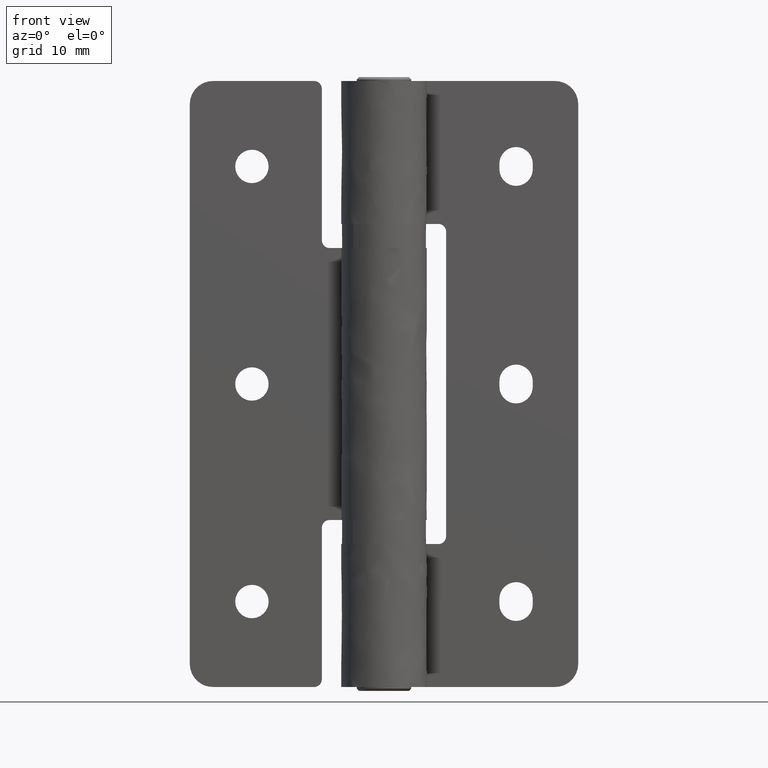
[diagram: clean part render]
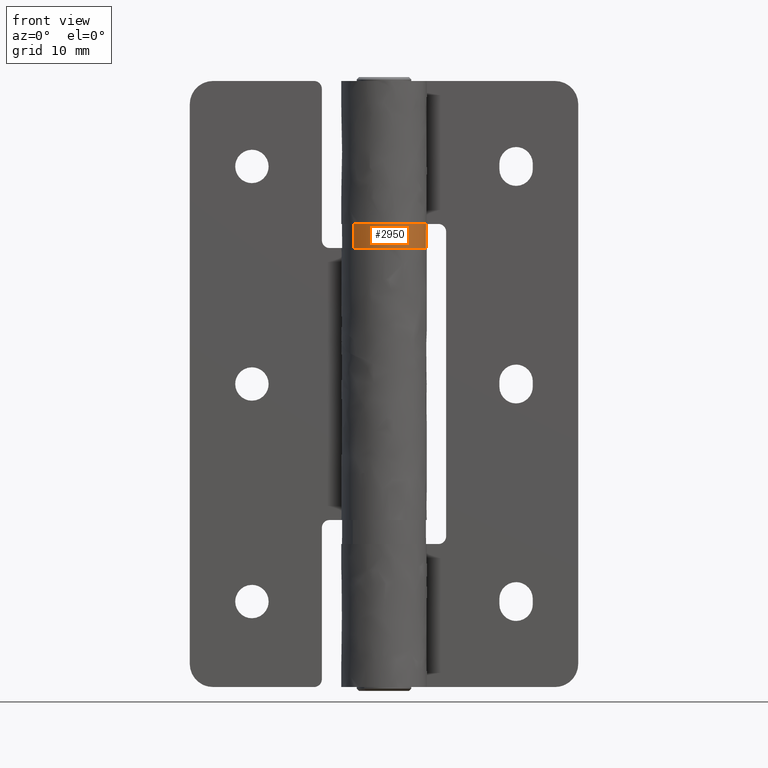
[diagram: same view with one face highlighted and labeled with its STEP entity id]
A machine part, front view. The second image highlights one B-rep face of the part: STEP entity #2950.
In plain terms, the highlighted face is a freeform B-spline surface patch.
Its self-contained STEP definition (entity closure, byte-faithful):
#2629=CARTESIAN_POINT('',(-3.943012842474344,-3.689531925990342,59.600000000000009));
#2630=VERTEX_POINT('',#2629);
#2641=CARTESIAN_POINT('',(0.000001444360469,-5.399999999999808,59.600000000000001));
#2642=VERTEX_POINT('',#2641);
#2643=CARTESIAN_POINT('',(-3.943012842474344,-3.689531925990342,59.600000000000009));
#2644=CARTESIAN_POINT('',(-3.691360478569494,-3.958548929059615,59.599999999999959));
#2645=CARTESIAN_POINT('',(-3.254896927099758,-4.338370133555252,59.600000000000087));
#2646=CARTESIAN_POINT('',(-2.452001558262252,-4.837727585702475,59.599999999999874));
#2647=CARTESIAN_POINT('',(-1.427320781180482,-5.266845573781776,59.600000000000520));
#2648=CARTESIAN_POINT('',(-0.529550896913935,-5.400217033833610,59.599999999999788));
#2649=CARTESIAN_POINT('',(0.000001444360469,-5.399999999999808,59.600000000000001));
#2650=B_SPLINE_CURVE_WITH_KNOTS('',3,(#2643,#2644,#2645,#2646,#2647,#2648,#2649),.UNSPECIFIED.,.F.,.U.,(4,1,1,1,4),(0.000000022925136,1.105113741456516,1.726749445206264,2.831851024979305,4.420452524770726),.UNSPECIFIED.);
#2651=EDGE_CURVE('',#2630,#2642,#2650,.T.);
#2653=CARTESIAN_POINT('',(5.400000000000000,0.0,59.600000000000001));
#2654=VERTEX_POINT('',#2653);
#2655=CARTESIAN_POINT('',(0.000001444360469,-5.399999999999808,59.600000000000001));
#2656=CARTESIAN_POINT('',(0.530177762271229,-5.400248014521686,59.599999999999923));
#2657=CARTESIAN_POINT('',(1.347322211069708,-5.278615927032345,59.600000000000250));
#2658=CARTESIAN_POINT('',(2.419857312735836,-4.857277841456933,59.599999999999682));
#2659=CARTESIAN_POINT('',(3.159166555141974,-4.407953872821744,59.600000000000399));
#2660=CARTESIAN_POINT('',(3.850121760635931,-3.819275568209007,59.599999999999483));
#2661=CARTESIAN_POINT('',(4.511959398904686,-3.042583785931636,59.600000000000250));
#2662=CARTESIAN_POINT('',(5.036540042136527,-2.061196097686154,59.599999999999930));
#2663=CARTESIAN_POINT('',(5.338808687429418,-0.994001548438331,59.599999999999781));
#2664=CARTESIAN_POINT('',(5.400033199193081,-0.331338662454892,59.600000000000257));
#2665=CARTESIAN_POINT('',(5.400000000000000,0.0,59.600000000000001));
#2666=B_SPLINE_CURVE_WITH_KNOTS('',3,(#2655,#2656,#2657,#2658,#2659,#2660,#2661,#2662,#2663,#2664,#2665),.UNSPECIFIED.,.F.,.U.,(4,1,1,1,1,1,1,1,4),(0.000000087730022,1.590432017954521,2.451931282263280,3.445958962535133,4.174933496270686,5.168913423878515,6.494301606563166,7.488336011317586,8.482352573459249),.UNSPECIFIED.);
#2667=EDGE_CURVE('',#2642,#2654,#2666,.T.);
#2669=CARTESIAN_POINT('',(3.943012838031218,3.689531930738721,59.599999999999987));
#2670=VERTEX_POINT('',#2669);
#2671=CARTESIAN_POINT('',(5.400000000000000,0.0,59.600000000000001));
#2672=CARTESIAN_POINT('',(5.400297100574385,0.550092216501772,59.600000000000122));
#2673=CARTESIAN_POINT('',(5.276046529224017,1.353813319626143,59.599999999999881));
#2674=CARTESIAN_POINT('',(4.777491392522765,2.616313176718014,59.600000000000193));
#2675=CARTESIAN_POINT('',(4.319059846986112,3.288044938347290,59.599999999999930));
#2676=CARTESIAN_POINT('',(3.943012838031218,3.689531930738721,59.599999999999987));
#2677=B_SPLINE_CURVE_WITH_KNOTS('',3,(#2671,#2672,#2673,#2674,#2675,#2676),.UNSPECIFIED.,.F.,.U.,(4,1,1,4),(0.000000020487021,1.650157503087802,2.411745329237241,4.061902315852191),.UNSPECIFIED.);
#2678=EDGE_CURVE('',#2654,#2670,#2677,.T.);
#2884=CARTESIAN_POINT('',(-3.943013151264365,-3.689532123312691,56.345154692314139));
#2885=CARTESIAN_POINT('',(-0.253481027951674,-7.632545274577057,56.345154692314146));
#2886=CARTESIAN_POINT('',(3.689532123312691,-3.943013151264365,56.345154692314139));
#2887=CARTESIAN_POINT('',(7.632545274577057,-0.253481027951674,56.345154692314146));
#2888=CARTESIAN_POINT('',(3.943013151264365,3.689532123312691,56.345154692314139));
#2889=CARTESIAN_POINT('',(-3.943013151264365,-3.689532123312691,59.754845414005644));
#2890=CARTESIAN_POINT('',(-0.253481027951674,-7.632545274577056,59.754845414005636));
#2891=CARTESIAN_POINT('',(3.689532123312691,-3.943013151264365,59.754845414005644));
#2892=CARTESIAN_POINT('',(7.632545274577056,-0.253481027951674,59.754845414005636));
#2893=CARTESIAN_POINT('',(3.943013151264365,3.689532123312691,59.754845414005644));
#2901=(BOUNDED_SURFACE()B_SPLINE_SURFACE(2,1,((#2884,#2889),(#2885,#2890),(#2886,#2891),(#2887,#2892),(#2888,#2893)),.UNSPECIFIED.,.F.,.F.,.U.)B_SPLINE_SURFACE_WITH_KNOTS((3,2,3),(2,2),(0.0,8.947012947258854,17.894025894517711),(0.0,3.409690721691504),.UNSPECIFIED.)GEOMETRIC_REPRESENTATION_ITEM()RATIONAL_B_SPLINE_SURFACE(((1.0,1.0),(0.707106781186547,0.707106781186547),(1.0,1.0),(0.707106781186547,0.707106781186547),(1.0,1.0)))REPRESENTATION_ITEM('')SURFACE());
#2902=ORIENTED_EDGE('',*,*,#2651,.F.);
#2903=CARTESIAN_POINT('',(-3.943013198097780,-3.689532073261690,56.499999999999979));
#2904=VERTEX_POINT('',#2903);
#2905=CARTESIAN_POINT('',(-3.943013198097780,-3.689532073261690,56.499999999999979));
#2906=CARTESIAN_POINT('',(-3.943012842474344,-3.689531925990342,59.600000000000009));
#2907=QUASI_UNIFORM_CURVE('',1,(#2905,#2906),.UNSPECIFIED.,.F.,.U.);
#2908=EDGE_CURVE('',#2904,#2630,#2907,.T.);
#2909=ORIENTED_EDGE('',*,*,#2908,.F.);
#2910=CARTESIAN_POINT('',(4.872458096471080,-2.327907235723416,56.499999999999993));
#2911=VERTEX_POINT('',#2910);
#2912=CARTESIAN_POINT('',(-3.943013198097780,-3.689532073261690,56.499999999999979));
#2913=CARTESIAN_POINT('',(-3.737598432207108,-3.909081408860117,56.499999999999993));
#2914=CARTESIAN_POINT('',(-3.228952768644250,-4.368964759978959,56.499999999999957));
#2915=CARTESIAN_POINT('',(-2.382907886844869,-4.882214464933957,56.499999999999957));
#2916=CARTESIAN_POINT('',(-1.482879378436550,-5.216261117265958,56.500000000000043));
#2917=CARTESIAN_POINT('',(-0.622478815272753,-5.387106820274349,56.499999999999957));
#2918=CARTESIAN_POINT('',(0.227229451295467,-5.418185747897239,56.500000000000021));
#2919=CARTESIAN_POINT('',(1.124993260028874,-5.307311230958482,56.499999999999922));
#2920=CARTESIAN_POINT('',(2.071844344871375,-5.024894833961731,56.500000000000028));
#2921=CARTESIAN_POINT('',(3.091996943010920,-4.484346846792350,56.499999999999901));
#2922=CARTESIAN_POINT('',(4.110710239697579,-3.599637792971827,56.499999999999822));
#2923=CARTESIAN_POINT('',(4.648762060361901,-2.796610720672583,56.500000000000448));
#2924=CARTESIAN_POINT('',(4.872458096471080,-2.327907235723416,56.499999999999993));
#2925=B_SPLINE_CURVE_WITH_KNOTS('',3,(#2912,#2913,#2914,#2915,#2916,#2917,#2918,#2919,#2920,#2921,#2922,#2923,#2924),.UNSPECIFIED.,.F.,.U.,(4,1,1,1,1,1,1,1,1,1,4),(0.000000058316775,0.901996918588493,2.049993295277776,2.952010903813831,3.772026130138060,4.674042245098496,5.493983874986726,6.477994405593812,7.626007920472842,8.938032803921960,10.496016315864640),.UNSPECIFIED.);
#2926=EDGE_CURVE('',#2904,#2911,#2925,.T.);
#2927=ORIENTED_EDGE('',*,*,#2926,.T.);
#2928=CARTESIAN_POINT('',(3.943013120300164,3.689532156404218,56.499999999999972));
#2929=VERTEX_POINT('',#2928);
#2930=CARTESIAN_POINT('',(4.872458096471080,-2.327907235723416,56.499999999999993));
#2931=CARTESIAN_POINT('',(5.105116818179941,-1.841596655138052,56.499999999999943));
#2932=CARTESIAN_POINT('',(5.343134119372832,-1.059381225181908,56.500000000000142));
#2933=CARTESIAN_POINT('',(5.427442130449797,0.120120162055111,56.499999999999851));
#2934=CARTESIAN_POINT('',(5.315910317715152,1.164140735484858,56.500000000000043));
#2935=CARTESIAN_POINT('',(4.887185027279124,2.450770824090013,56.499999999999801));
#2936=CARTESIAN_POINT('',(4.334598288247286,3.271507082610278,56.500000000000433));
#2937=CARTESIAN_POINT('',(3.943013120300164,3.689532156404218,56.499999999999972));
#2938=B_SPLINE_CURVE_WITH_KNOTS('',3,(#2930,#2931,#2932,#2933,#2934,#2935,#2936,#2937),.UNSPECIFIED.,.F.,.U.,(4,1,1,1,1,4),(0.000000049805053,1.617177221260596,2.425770477445468,3.537553210402119,4.750456952055814,6.468708566578509),.UNSPECIFIED.);
#2939=EDGE_CURVE('',#2911,#2929,#2938,.T.);
#2940=ORIENTED_EDGE('',*,*,#2939,.T.);
#2941=CARTESIAN_POINT('',(3.943013120300164,3.689532156404218,56.499999999999972));
#2942=CARTESIAN_POINT('',(3.943012838031218,3.689531930738721,59.599999999999987));
#2943=QUASI_UNIFORM_CURVE('',1,(#2941,#2942),.UNSPECIFIED.,.F.,.U.);
#2944=EDGE_CURVE('',#2929,#2670,#2943,.T.);
#2945=ORIENTED_EDGE('',*,*,#2944,.T.);
#2946=ORIENTED_EDGE('',*,*,#2678,.F.);
#2947=ORIENTED_EDGE('',*,*,#2667,.F.);
#2948=EDGE_LOOP('',(#2902,#2909,#2927,#2940,#2945,#2946,#2947));
#2949=FACE_OUTER_BOUND('',#2948,.T.);
#2950=ADVANCED_FACE('',(#2949),#2901,.T.);